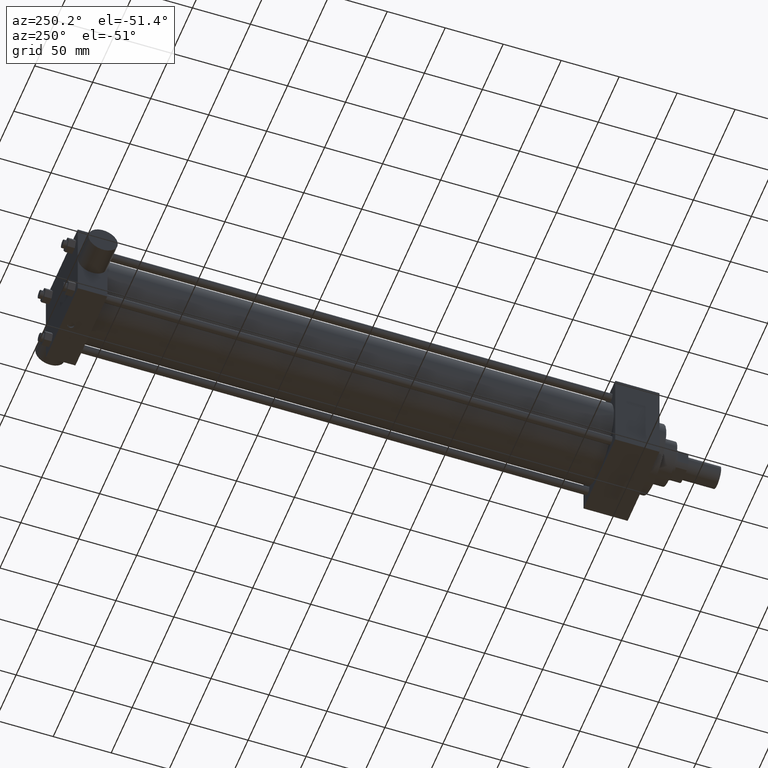
[diagram: clean part render]
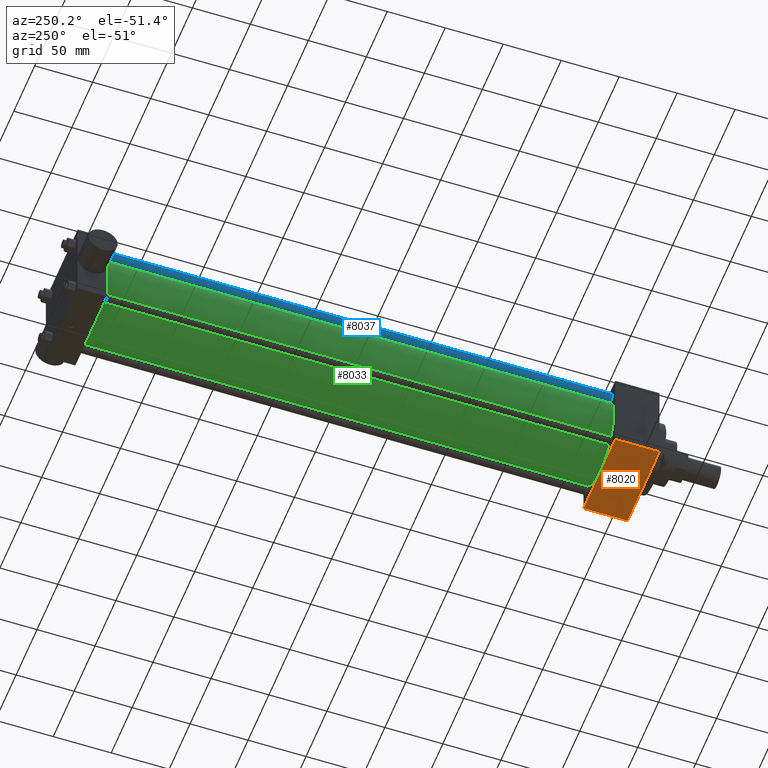
[diagram: same view with three faces highlighted in distinct colors, each labeled with its STEP entity id]
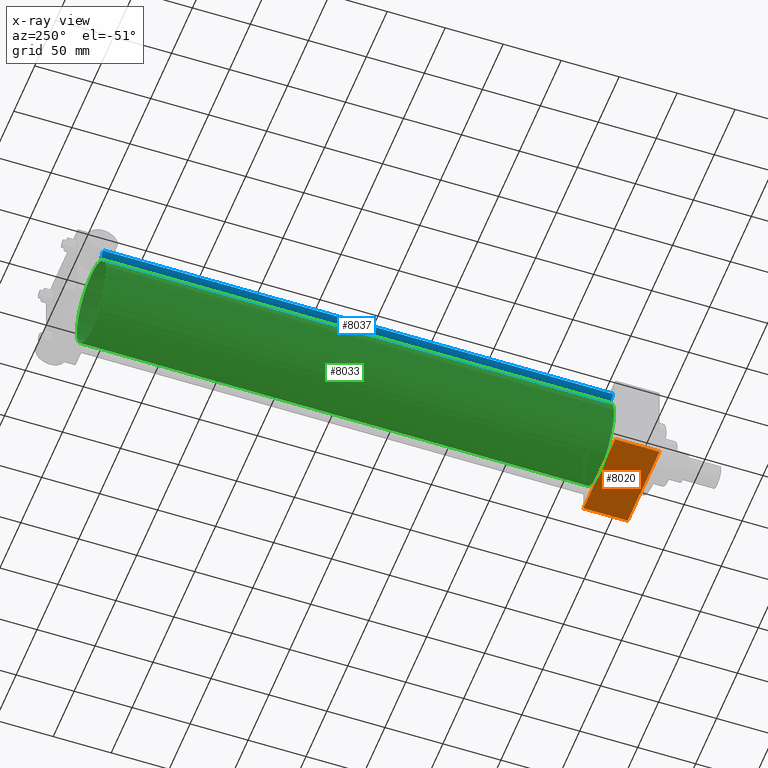
[diagram: x-ray of the same camera — body ghosted, the three highlighted faces saturated]
A machine part, auxiliary view with three faces highlighted in distinct colors.
The next image is the same camera in x-ray (body ghosted, the three faces saturated) — at least one of them is partly hidden behind the body in this view.
Their STEP definitions:

[orange] entity #8020 — the highlighted planar face has unit normal (0, 0, -1).
#541=EDGE_CURVE('',#546,#547,#542,.T.);
#542=LINE('',#543,#544);
#543=CARTESIAN_POINT('',(-3.810000000E+001,7.302500000E+001,-3.810000000E+001));
#544=VECTOR('',#545,1.0E+000);
#545=DIRECTION('',(1.0E+000,0.0E+000,0.0E+000));
#546=VERTEX_POINT('',#548);
#547=VERTEX_POINT('',#549);
#548=CARTESIAN_POINT('',(-3.810000000E+001,7.302500000E+001,-3.810000000E+001));
#549=CARTESIAN_POINT('',(3.810000000E+001,7.302500000E+001,-3.810000000E+001));
#592=FACE_OUTER_BOUND('',#594,.T.);
#593=FACE_BOUND('',#595,.T.);
#594=EDGE_LOOP('',(#596));
#595=EDGE_LOOP('',(#605,#606,#607,#608));
#596=ORIENTED_EDGE('',*,*,#597,.T.);
#597=EDGE_CURVE('',#603,#603,#598,.T.);
#598=CIRCLE('',#599,2.778125000E+000);
#599=AXIS2_PLACEMENT_3D('',#600,#601,#602);
#600=CARTESIAN_POINT('',(0.000000000E+000,5.397500000E+001,-3.810000000E+001));
#601=DIRECTION('',(0.0E+000,0.0E+000,1.0E+000));
#602=DIRECTION('',(0.0E+000,1.0E+000,0.0E+000));
#603=VERTEX_POINT('',#604);
#604=CARTESIAN_POINT('',(0.000000000E+000,5.675312500E+001,-3.810000000E+001));
#605=ORIENTED_EDGE('',*,*,#609,.T.);
#606=ORIENTED_EDGE('',*,*,#616,.F.);
#607=ORIENTED_EDGE('',*,*,#623,.F.);
#608=ORIENTED_EDGE('',*,*,#541,.T.);
#609=EDGE_CURVE('',#547,#614,#610,.T.);
#610=LINE('',#611,#612);
#611=CARTESIAN_POINT('',(3.810000000E+001,7.302500000E+001,-3.810000000E+001));
#612=VECTOR('',#613,1.0E+000);
#613=DIRECTION('',(0.0E+000,-1.0E+000,0.0E+000));
#614=VERTEX_POINT('',#615);
#615=CARTESIAN_POINT('',(3.810000000E+001,3.492500000E+001,-3.810000000E+001));
#616=EDGE_CURVE('',#621,#614,#617,.T.);
#617=LINE('',#618,#619);
#618=CARTESIAN_POINT('',(-3.810000000E+001,3.492500000E+001,-3.810000000E+001));
#619=VECTOR('',#620,1.0E+000);
#620=DIRECTION('',(1.0E+000,0.0E+000,0.0E+000));
#621=VERTEX_POINT('',#622);
#622=CARTESIAN_POINT('',(-3.810000000E+001,3.492500000E+001,-3.810000000E+001));
#623=EDGE_CURVE('',#546,#621,#624,.T.);
#624=LINE('',#625,#626);
#625=CARTESIAN_POINT('',(-3.810000000E+001,7.302500000E+001,-3.810000000E+001));
#626=VECTOR('',#627,1.0E+000);
#627=DIRECTION('',(0.0E+000,-1.0E+000,0.0E+000));
#628=PLANE('',#629);
#629=AXIS2_PLACEMENT_3D('',#630,#631,#632);
#630=CARTESIAN_POINT('',(-3.810000000E+001,7.302500000E+001,-3.810000000E+001));
#631=DIRECTION('',(0.0E+000,0.0E+000,-1.0E+000));
#632=DIRECTION('',(-1.0E+000,0.0E+000,0.0E+000));
#8020=ADVANCED_FACE('',(#592,#593),#628,.T.);

[blue] entity #8037 — the highlighted cylindrical surface (bore or boss wall) has radius 3.5687 mm, axis along (0, -1, 0).
#570=EDGE_CURVE('',#576,#576,#571,.T.);
#571=CIRCLE('',#572,3.568700000E+000);
#572=AXIS2_PLACEMENT_3D('',#573,#574,#575);
#573=CARTESIAN_POINT('',(-2.781300000E+001,7.302500000E+001,2.781300000E+001));
#574=DIRECTION('',(0.0E+000,-1.0E+000,0.0E+000));
#575=DIRECTION('',(0.0E+000,0.0E+000,-1.0E+000));
#576=VERTEX_POINT('',#577);
#577=CARTESIAN_POINT('',(-2.781300000E+001,7.302500000E+001,2.424430000E+001));
#1412=FACE_OUTER_BOUND('',#1414,.T.);
#1413=FACE_BOUND('',#1415,.T.);
#1414=EDGE_LOOP('',(#1416));
#1415=EDGE_LOOP('',(#1417));
#1416=ORIENTED_EDGE('',*,*,#1471,.F.);
#1417=ORIENTED_EDGE('',*,*,#570,.F.);
#1418=CYLINDRICAL_SURFACE('',#1419,3.568700000E+000);
#1419=AXIS2_PLACEMENT_3D('',#1420,#1421,#1422);
#1420=CARTESIAN_POINT('',(-2.781300000E+001,5.111750000E+002,2.781300000E+001));
#1421=DIRECTION('',(0.0E+000,-1.0E+000,0.0E+000));
#1422=DIRECTION('',(0.0E+000,0.0E+000,-1.0E+000));
#1471=EDGE_CURVE('',#1477,#1477,#1472,.T.);
#1472=CIRCLE('',#1473,3.568700000E+000);
#1473=AXIS2_PLACEMENT_3D('',#1474,#1475,#1476);
#1474=CARTESIAN_POINT('',(-2.781300000E+001,5.111750000E+002,2.781300000E+001));
#1475=DIRECTION('',(0.0E+000,1.0E+000,0.0E+000));
#1476=DIRECTION('',(1.0E+000,0.0E+000,0.0E+000));
#1477=VERTEX_POINT('',#1478);
#1478=CARTESIAN_POINT('',(-2.424430000E+001,5.111750000E+002,2.781300000E+001));
#8037=ADVANCED_FACE('',(#1412,#1413),#1418,.T.);

[green] entity #8033 — the highlighted cylindrical surface (bore or boss wall) has radius 34.925 mm, axis along (0, -1, 0).
#579=EDGE_CURVE('',#585,#585,#580,.T.);
#580=CIRCLE('',#581,3.492500000E+001);
#581=AXIS2_PLACEMENT_3D('',#582,#583,#584);
#582=CARTESIAN_POINT('',(0.000000000E+000,7.302500000E+001,0.000000000E+000));
#583=DIRECTION('',(0.0E+000,-1.0E+000,0.0E+000));
#584=DIRECTION('',(0.0E+000,0.0E+000,-1.0E+000));
#585=VERTEX_POINT('',#586);
#586=CARTESIAN_POINT('',(0.000000000E+000,7.302500000E+001,-3.492500000E+001));
#1344=FACE_OUTER_BOUND('',#1346,.T.);
#1345=FACE_BOUND('',#1347,.T.);
#1346=EDGE_LOOP('',(#1348));
#1347=EDGE_LOOP('',(#1357));
#1348=ORIENTED_EDGE('',*,*,#1349,.F.);
#1349=EDGE_CURVE('',#1355,#1355,#1350,.T.);
#1350=CIRCLE('',#1351,3.492500000E+001);
#1351=AXIS2_PLACEMENT_3D('',#1352,#1353,#1354);
#1352=CARTESIAN_POINT('',(0.000000000E+000,5.111750000E+002,0.000000000E+000));
#1353=DIRECTION('',(0.0E+000,1.0E+000,0.0E+000));
#1354=DIRECTION('',(1.0E+000,0.0E+000,0.0E+000));
#1355=VERTEX_POINT('',#1356);
#1356=CARTESIAN_POINT('',(3.492500000E+001,5.111750000E+002,0.000000000E+000));
#1357=ORIENTED_EDGE('',*,*,#579,.F.);
#1358=CYLINDRICAL_SURFACE('',#1359,3.492500000E+001);
#1359=AXIS2_PLACEMENT_3D('',#1360,#1361,#1362);
#1360=CARTESIAN_POINT('',(0.000000000E+000,5.111750000E+002,0.000000000E+000));
#1361=DIRECTION('',(0.0E+000,-1.0E+000,0.0E+000));
#1362=DIRECTION('',(0.0E+000,0.0E+000,-1.0E+000));
#8033=ADVANCED_FACE('',(#1344,#1345),#1358,.T.);